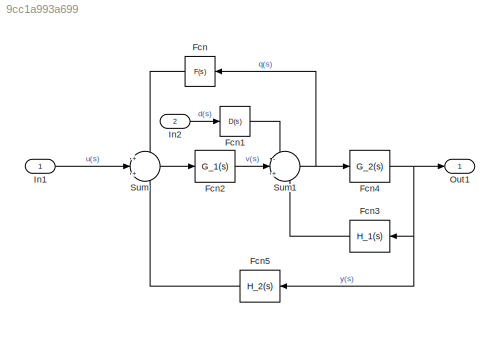
MODEL slx_9cc1a993a699
KIND model
CONFIG AbsTol = auto
CONFIG EnableMultiTasking = off
CONFIG FixedStep = auto
CONFIG MaxStep = auto
CONFIG MinStep = auto
CONFIG RelTol = 1e-3
CONFIG SampleTimeConstraint = Unconstrained
CONFIG Solver = VariableStepAuto
CONFIG SolverName = VariableStepAuto
CONFIG StartTime = 0.0
CONFIG StopTime = 10.0
BLOCK [Fcn] Fcn
  Expr = F(s)
BLOCK [Fcn] Fcn1
  Expr = D(s)
BLOCK [Fcn] Fcn2
  Expr = G_1(s)
BLOCK [Fcn] Fcn3
  Expr = H_1(s)
BLOCK [Fcn] Fcn4
  Expr = G_2(s)
BLOCK [Fcn] Fcn5
  Expr = H_2(s)
BLOCK [Inport] In1
  IconDisplay = Signal name
BLOCK [Inport] In2
  IconDisplay = Signal name
  Port = 2
BLOCK [Outport] Out1
  IconDisplay = Signal name
BLOCK [Sum] Sum
  IconShape = round
  InputSameDT = off
  Inputs = +|+|-
  OutDataTypeStr = Inherit: Inherit via internal rule
  Ports = [3, 1]
  SaturateOnIntegerOverflow = off
BLOCK [Sum] Sum1
  IconShape = round
  InputSameDT = off
  Inputs = -|+|-
  OutDataTypeStr = Inherit: Inherit via internal rule
  Ports = [3, 1]
  SaturateOnIntegerOverflow = off
LINE Fcn1:1 -> Sum1:1
LINE Fcn2:1 -> Sum1:2
LINE Fcn3:1 -> Sum1:3
NET Fcn4:1 -> Fcn3:1, Fcn5:1, Out1:1
LINE Fcn5:1 -> Sum:3
LINE Fcn:1 -> Sum:1
LINE In1:1 -> Sum:2
LINE In2:1 -> Fcn1:1
NET Sum1:1 -> Fcn4:1, Fcn:1
LINE Sum:1 -> Fcn2:1
note: NET lines group one-source signal fan-out (src -> all destinations, sorted); 1:1 wires keep LINE
